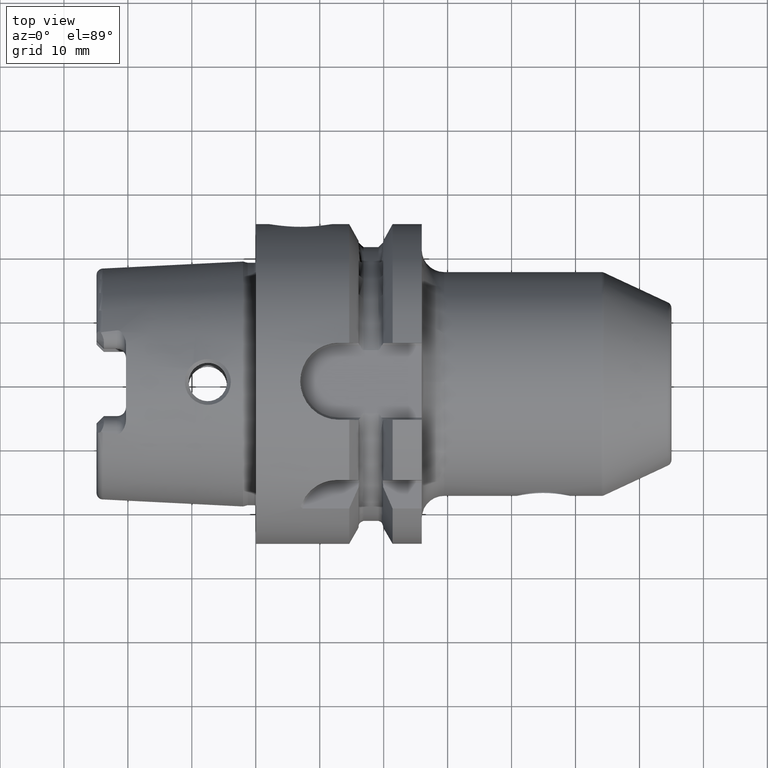
[diagram: clean part render]
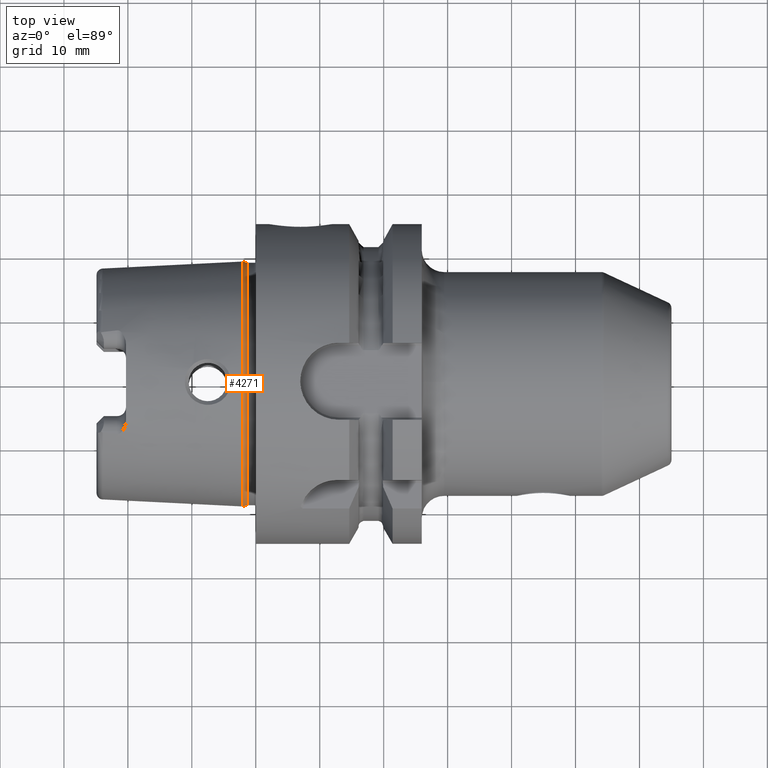
[diagram: same view with one face highlighted and labeled with its STEP entity id]
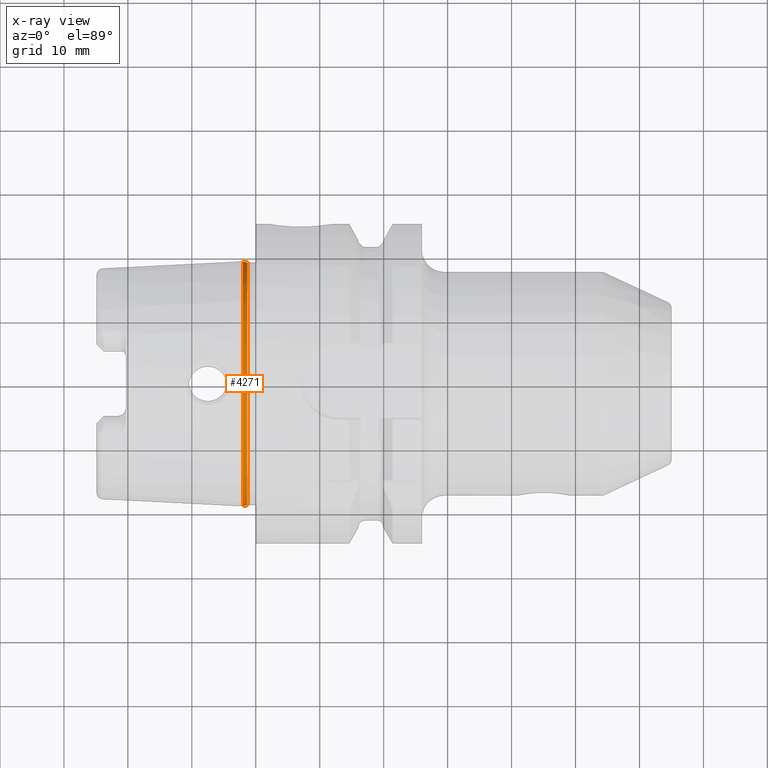
[diagram: x-ray of the same camera — body ghosted, the highlighted face saturated]
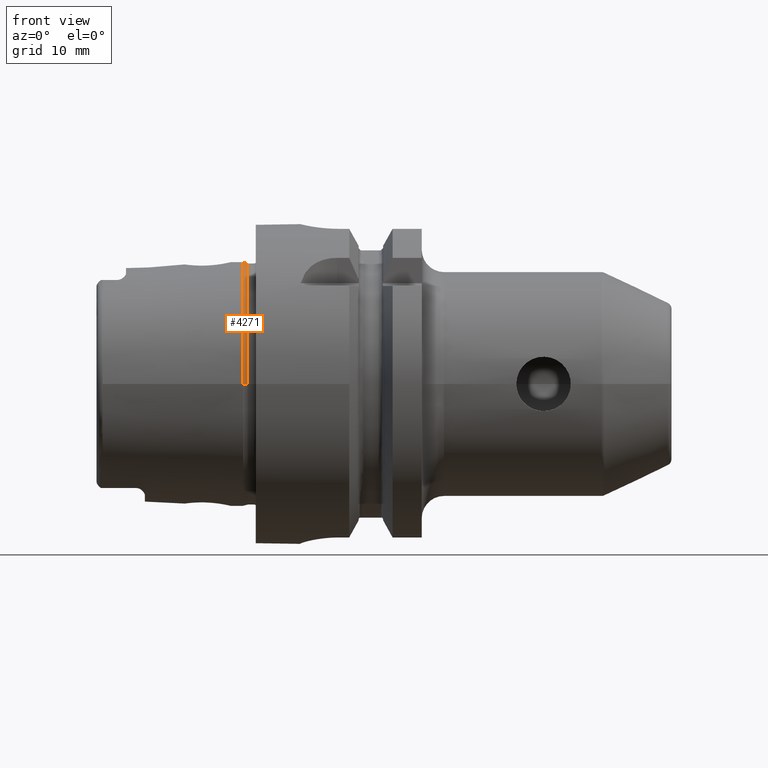
[diagram: same view with one face highlighted and labeled with its STEP entity id]
A machine part, top view. The second image highlights one B-rep face of the part: STEP entity #4271.
The next image is the same camera in x-ray: the body ghosted, the highlighted face saturated — about 0% of this face is hidden behind the body in this view.
A second angle (front view) of the same face is appended — the face is thin or edge-on in the first view.
In plain terms, the highlighted conical surface has half-angle 15 deg.
Its self-contained STEP definition (entity closure, byte-faithful):
#19=CARTESIAN_POINT('',(-2.E0,0.E0,0.E0));
#20=DIRECTION('',(1.E0,0.E0,0.E0));
#21=DIRECTION('',(0.E0,1.E0,0.E0));
#22=AXIS2_PLACEMENT_3D('',#19,#20,#21);
#783=DIRECTION('',(-9.659258262891E-1,-2.588190451025E-1,0.E0));
#784=VECTOR('',#783,6.937491624787E-1);
#785=CARTESIAN_POINT('',(-1.329889766995E0,-1.897524450423E1,0.E0));
#786=LINE('',#785,#784);
#792=DIRECTION('',(-9.659258262891E-1,2.588190451025E-1,0.E0));
#793=VECTOR('',#792,6.937491624787E-1);
#794=CARTESIAN_POINT('',(-1.329889766995E0,1.897524450423E1,0.E0));
#795=LINE('',#794,#793);
#796=CARTESIAN_POINT('',(-1.329889766995E0,0.E0,0.E0));
#797=DIRECTION('',(-1.E0,0.E0,0.E0));
#798=DIRECTION('',(0.E0,-1.E0,0.E0));
#799=AXIS2_PLACEMENT_3D('',#796,#797,#798);
#2927=CARTESIAN_POINT('',(-1.329889766995E0,-1.897524450423E1,0.E0));
#2928=VERTEX_POINT('',#2927);
#2935=CARTESIAN_POINT('',(-1.329889766995E0,1.897524450423E1,0.E0));
#2936=VERTEX_POINT('',#2935);
#2937=CARTESIAN_POINT('',(-2.E0,1.91548E1,0.E0));
#2938=CARTESIAN_POINT('',(-2.E0,-1.91548E1,0.E0));
#2939=VERTEX_POINT('',#2937);
#2940=VERTEX_POINT('',#2938);
#4259=CARTESIAN_POINT('',(-1.664944883498E0,0.E0,0.E0));
#4260=DIRECTION('',(-1.E0,0.E0,0.E0));
#4261=DIRECTION('',(0.E0,1.E0,0.E0));
#4262=AXIS2_PLACEMENT_3D('',#4259,#4260,#4261);
#4263=CONICAL_SURFACE('',#4262,1.906502225211E1,1.5E1);
#4264=ORIENTED_EDGE('',*,*,#3460,.F.);
#4265=ORIENTED_EDGE('',*,*,#4254,.F.);
#4267=ORIENTED_EDGE('',*,*,#4266,.F.);
#4268=ORIENTED_EDGE('',*,*,#4250,.T.);
#4269=EDGE_LOOP('',(#4264,#4265,#4267,#4268));
#4270=FACE_OUTER_BOUND('',#4269,.F.);
#4271=ADVANCED_FACE('',(#4270),#4263,.T.);
#23=CIRCLE('',#22,1.91548E1);
#800=CIRCLE('',#799,1.897524450423E1);
#3460=EDGE_CURVE('',#2939,#2940,#23,.T.);
#4250=EDGE_CURVE('',#2928,#2940,#786,.T.);
#4254=EDGE_CURVE('',#2936,#2939,#795,.T.);
#4266=EDGE_CURVE('',#2928,#2936,#800,.T.);